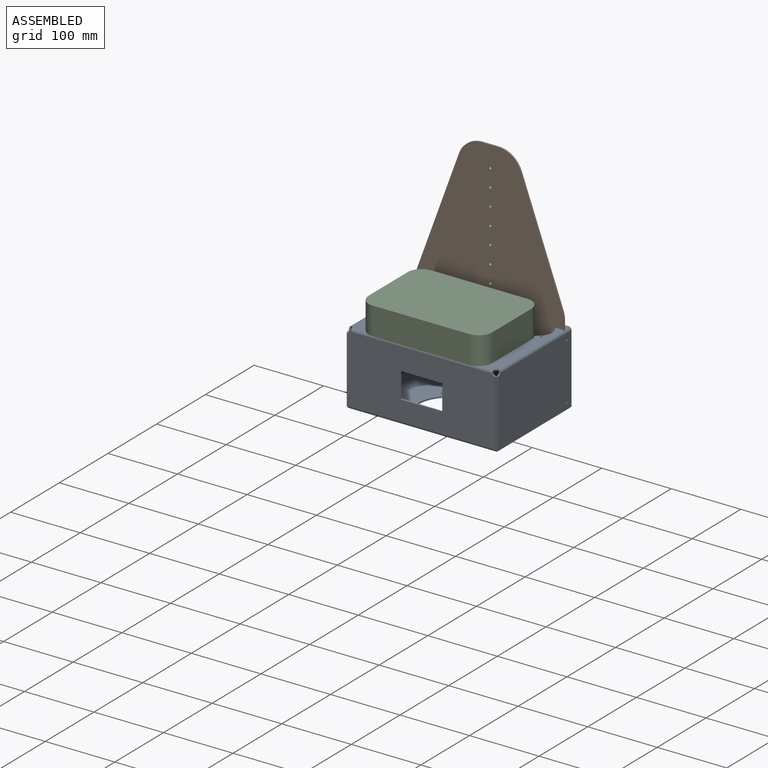
[diagram: assembled view]
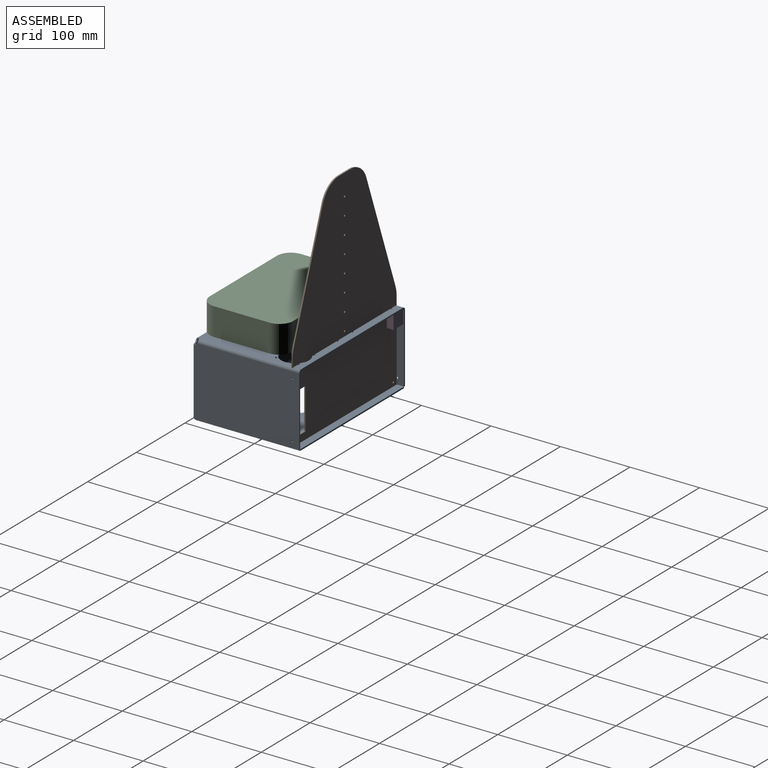
[diagram: assembled view, second angle]
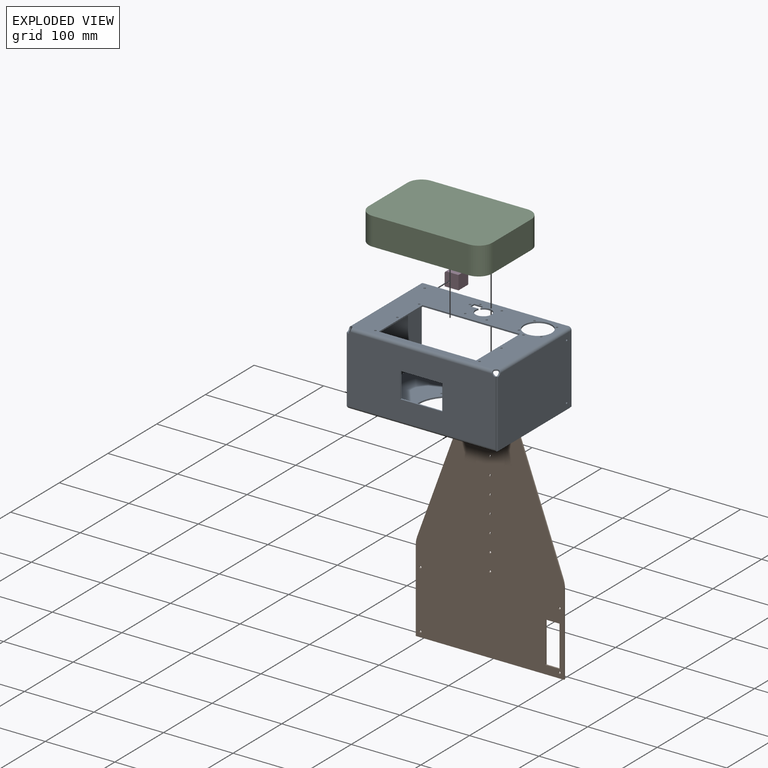
[diagram: exploded view]
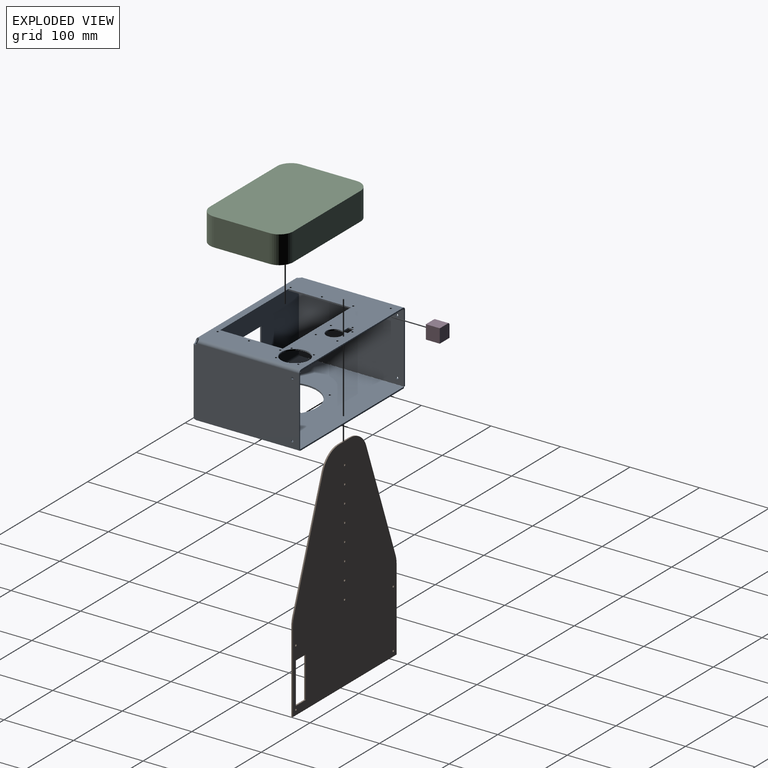
[diagram: exploded view, second angle]
ASSEMBLY  parts=4 mates=2
PART A: 83 faces, bbox 217.3x153.3x105.3 mm
  f0: plane 149.03x2mm, normal (-1,0,0), area 298.1mm2, adj f1,f8,f9,f64
  f1: plane 213.31x2mm, normal (0,1,0), area 426.6mm2, adj f0,f7,f8,f9
  f2: cylinder r=1.5mm len=3mm, axis (0,0,1), area 18.8mm2, adj f8,f9
  f3: cylinder r=1.5mm len=3mm, axis (0,0,1), area 18.8mm2, adj f8,f9
  f4: cylinder r=1.5mm len=3mm, axis (0,0,1), area 18.8mm2, adj f8,f9
  f5: cylinder r=1.5mm len=3mm, axis (0,0,1), area 18.8mm2, adj f8,f9
  f6: cylinder r=45mm len=90mm, axis (0,0,1), area 565.5mm2, adj f8,f9
  f7: plane 149.03x2mm, normal (1,0,0), area 298.1mm2, adj f1,f8,f9,f63
  f8: plane 213.31x149.03mm, normal (0,0,-1), area 25398.6mm2, adj f0,f1,f2,f3,f4,f5,f6,f7
  f9: plane 213.31x149.03mm, normal (0,0,1), area 25398.6mm2, adj f0,f1,f2,f3,f4,f5,f6,f7
  f10: plane 208.75x149.03mm, normal (0,0,1), area 16615.5mm2, adj f11,f12,f13,f14,f15,f16,f17,f18
  f11: plane 90x2mm, normal (1,0,0), area 180mm2, adj f10,f12,f37,f38
  f12: plane 140x2mm, normal (0,-1,0), area 280mm2, adj f10,f11,f13,f38
  f13: plane 90x2mm, normal (-1,0,0), area 180mm2, adj f10,f12,f37,f38
  f14: plane 11.77x2mm, normal (0,1,0), area 23.5mm2, adj f10,f15,f36,f38
  f15: plane 8x2mm, normal (1,0,0), area 16mm2, adj f10,f14,f16,f38
  f16: plane 13x2mm, normal (0,-1,0), area 26mm2, adj f10,f15,f17,f38
  f17: plane 5.88x2mm, normal (-1,0,0), area 11.8mm2, adj f10,f16,f36,f38
  f18: plane 208.75x2mm, normal (0,1,0), area 417.5mm2, adj f10,f38,f49,f79
  f19: cylinder r=1.5mm len=3mm, axis (0,0,1), area 18.8mm2, adj f10,f38
  f20: cylinder r=1.5mm len=3mm, axis (0,0,1), area 18.8mm2, adj f10,f38
  f21: cylinder r=1.5mm len=3mm, axis (0,0,1), area 18.8mm2, adj f10,f38
  f22: cylinder r=1.5mm len=3mm, axis (0,0,1), area 18.8mm2, adj f10,f38
  f23: cylinder r=1.5mm len=3mm, axis (0,0,1), area 18.8mm2, adj f10,f38
  f24: cylinder r=1.5mm len=3mm, axis (0,0,1), area 18.8mm2, adj f10,f38
  f25: cylinder r=1.5mm len=3mm, axis (0,0,1), area 18.8mm2, adj f10,f38
  f26: cylinder r=1.5mm len=3mm, axis (0,0,1), area 18.8mm2, adj f10,f38
  f27: cylinder r=1.5mm len=3mm, axis (0,0,1), area 18.8mm2, adj f10,f38
  f28: cylinder r=1.5mm len=3mm, axis (0,0,1), area 18.8mm2, adj f10,f38
  f29: cylinder r=1.5mm len=3mm, axis (0,0,1), area 18.8mm2, adj f10,f38
  f30: cylinder r=1.5mm len=3mm, axis (0,0,1), area 18.8mm2, adj f10,f38
  f31: cylinder r=1.5mm len=3mm, axis (0,0,1), area 18.8mm2, adj f10,f38
  f32: cylinder r=1.5mm len=3mm, axis (0,0,1), area 18.8mm2, adj f10,f38
  f33: cylinder r=1.5mm len=3mm, axis (0,0,1), area 18.8mm2, adj f10,f38
  f34: cylinder r=20mm len=40mm, axis (0,0,1), area 251.3mm2, adj f10,f38
  f35: cylinder r=1.5mm len=3mm, axis (0,0,1), area 18.8mm2, adj f10,f38
  f36: cylinder r=11.5mm len=23mm, axis (0,0,1), area 139.6mm2, adj f10,f14,f17,f38
  f37: plane 140x2mm, normal (0,1,0), area 280mm2, adj f10,f11,f13,f38
  f38: plane 208.75x149.03mm, normal (0,0,-1), area 16615.5mm2, adj f11,f12,f13,f14,f15,f16,f17,f18
  f39: cylinder r=5.33mm len=2.19mm, axis (0,0,-1), area 6.3mm2, adj f10,f38,f67,f80
  f40: cylinder r=5.33mm len=2.19mm, axis (0,0,-1), area 6.3mm2, adj f10,f38,f50,f68
  f41: plane 96.21x2mm, normal (0,-1,0), area 192.4mm2, adj f43,f46,f47,f48
  f42: plane 99.03x2mm, normal (0,1,0), area 198.1mm2, adj f43,f46,f47,f49
  f43: plane 151.31x2mm, normal (0,0,-1), area 302.6mm2, adj f41,f42,f46,f47
  f44: cylinder r=1.5mm len=3mm, axis (1,0,0), area 18.8mm2, adj f46,f47
  f45: cylinder r=1.5mm len=3mm, axis (1,0,0), area 18.8mm2, adj f46,f47
  f46: plane 151.31x99.03mm, normal (-1,0,0), area 14960.6mm2, adj f41,f42,f43,f44,f45,f48,f51
  f47: plane 151.31x99.03mm, normal (1,0,0), area 14960.6mm2, adj f41,f42,f43,f44,f45,f48,f52
  f48: cylinder r=5.33mm len=4.47mm, axis (1,0,0), area 11mm2, adj f41,f46,f47,f50
  f49: plane 4.3x4.3mm, normal (0,1,0), area 10.4mm2, adj f18,f42,f51,f52
  f50: bspline ~4.3x4.3mm, area 10.8mm2, adj f40,f48,f51,f52
  f51: cylinder r=4.3mm len=146.84mm, axis (0,-1,0), area 988.9mm2, adj f10,f46,f49,f50
  f52: cylinder r=2.3mm len=146.84mm, axis (0,-1,0), area 529mm2, adj f38,f47,f49,f50
  f53: plane 93.93x2mm, normal (-1,0,0), area 187.9mm2, adj f59,f60,f61,f64
  f54: plane 93.93x2mm, normal (1,0,0), area 187.9mm2, adj f59,f60,f62,f63
  f55: plane 36.72x2mm, normal (1,0,0), area 73.4mm2, adj f56,f58,f59,f60
  f56: plane 60.26x2mm, normal (0,0,-1), area 120.5mm2, adj f55,f57,f59,f60
  f57: plane 36.72x2mm, normal (-1,0,0), area 73.4mm2, adj f56,f58,f59,f60
  f58: plane 60.26x2mm, normal (0,0,1), area 120.5mm2, adj f55,f57,f59,f60
  f59: plane 213.31x96.75mm, normal (0,-1,0), area 18406.6mm2, adj f53,f54,f55,f56,f57,f58,f61,f62
  f60: plane 213.31x96.75mm, normal (0,1,0), area 18406.6mm2, adj f53,f54,f55,f56,f57,f58,f61,f62
  f61: cylinder r=5.33mm len=4.47mm, axis (0,1,0), area 11mm2, adj f53,f59,f60,f68
  f62: cylinder r=5.33mm len=4.47mm, axis (0,1,0), area 11mm2, adj f54,f59,f60,f67
  f63: plane 4.3x4.3mm, normal (1,0,0), area 10.4mm2, adj f7,f54,f65,f66
  f64: plane 4.3x4.3mm, normal (-1,0,0), area 10.4mm2, adj f0,f53,f65,f66
  f65: cylinder r=4.3mm len=213.31mm, axis (1,0,0), area 1440.8mm2, adj f8,f59,f63,f64
  f66: cylinder r=2.3mm len=213.31mm, axis (1,0,0), area 770.6mm2, adj f9,f60,f63,f64
  f67: bspline ~4.3x4.3mm, area 10.8mm2, adj f39,f62,f69,f70
  f68: bspline ~4.3x4.3mm, area 10.8mm2, adj f40,f61,f69,f70
  f69: cylinder r=4.3mm len=204.37mm, axis (1,0,0), area 1374.7mm2, adj f10,f59,f67,f68
  f70: cylinder r=2.3mm len=204.37mm, axis (1,0,0), area 735.3mm2, adj f38,f60,f67,f68
  f71: plane 96.21x2mm, normal (0,-1,0), area 192.4mm2, adj f72,f76,f77,f78
  f72: plane 151.31x2mm, normal (0,0,-1), area 302.6mm2, adj f71,f75,f76,f77
  f73: cylinder r=1.5mm len=3mm, axis (-1,0,0), area 18.8mm2, adj f76,f77
  f74: cylinder r=1.5mm len=3mm, axis (-1,0,0), area 18.8mm2, adj f76,f77
  f75: plane 99.03x2mm, normal (0,1,0), area 198.1mm2, adj f72,f76,f77,f79
  f76: plane 151.31x99.03mm, normal (1,0,0), area 14960.6mm2, adj f71,f72,f73,f74,f75,f78,f81
  f77: plane 151.31x99.03mm, normal (-1,0,0), area 14960.6mm2, adj f71,f72,f73,f74,f75,f78,f82
  f78: cylinder r=5.33mm len=4.47mm, axis (-1,0,0), area 11mm2, adj f71,f76,f77,f80
  f79: plane 4.3x4.3mm, normal (0,1,0), area 10.4mm2, adj f18,f75,f81,f82
  f80: bspline ~4.3x4.3mm, area 10.8mm2, adj f39,f78,f81,f82
  f81: cylinder r=4.3mm len=146.84mm, axis (0,1,0), area 988.9mm2, adj f10,f76,f79,f80
  f82: cylinder r=2.3mm len=146.84mm, axis (0,1,0), area 529mm2, adj f38,f77,f79,f80
PART B: 28 faces, bbox 213.3x2x318.1 mm
  f0: plane 118.07x2mm, normal (1,0,0), area 236.1mm2, adj f1,f7,f8,f20
  f1: plane 213.31x2mm, normal (0,0,-1), area 426.6mm2, adj f0,f6,f7,f8
  f2: plane 20x2mm, normal (0,0,-1), area 40mm2, adj f3,f5,f7,f8
  f3: plane 59x2mm, normal (1,0,0), area 118mm2, adj f2,f4,f7,f8
  f4: plane 20x2mm, normal (0,0,1), area 40mm2, adj f3,f5,f7,f8
  f5: plane 59x2mm, normal (-1,0,0), area 118mm2, adj f2,f4,f7,f8
  f6: plane 118.07x2mm, normal (-1,0,0), area 236.1mm2, adj f1,f7,f8,f21
  f7: plane 318.08x213.31mm, normal (0,1,0), area 52668mm2, adj f0,f1,f2,f3,f4,f5,f6,f9
  f8: plane 318.08x213.31mm, normal (0,-1,0), area 52668mm2, adj f0,f1,f2,f3,f4,f5,f6,f9
  f9: plane 165.01x60.14mm, normal (0.94,0,0.34), area 351.3mm2, adj f7,f8,f20,f23
  f10: plane 165.01x60.14mm, normal (-0.94,0,0.34), area 351.3mm2, adj f7,f8,f21,f22
  f11: plane 23.02x2mm, normal (0,0,1), area 46mm2, adj f7,f8,f22,f23
  f12: cylinder r=1.5mm len=3mm, axis (0,1,0), area 18.8mm2, adj f7,f8
  f13: cylinder r=1.5mm len=3mm, axis (0,1,0), area 18.8mm2, adj f7,f8
  f14: cylinder r=1.5mm len=3mm, axis (0,1,0), area 18.8mm2, adj f7,f8
  f15: cylinder r=1.5mm len=3mm, axis (0,1,0), area 18.8mm2, adj f7,f8
  f16: cylinder r=1.5mm len=3mm, axis (0,1,0), area 18.8mm2, adj f7,f8
  f17: cylinder r=1.5mm len=3mm, axis (0,1,0), area 18.8mm2, adj f7,f8
  f18: cylinder r=1.5mm len=3mm, axis (0,1,0), area 18.8mm2, adj f7,f8
  f19: cylinder r=1.5mm len=3mm, axis (0,1,0), area 18.8mm2, adj f7,f8
  f20: cylinder r=35mm len=11.99mm, axis (0,1,0), area 24.5mm2, adj f0,f7,f8,f9
  f21: cylinder r=35mm len=11.99mm, axis (0,1,0), area 24.5mm2, adj f6,f7,f8,f10
  f22: cylinder r=35mm len=32.88mm, axis (0,1,0), area 85.5mm2, adj f7,f8,f10,f11
  f23: cylinder r=35mm len=32.88mm, axis (0,-1,0), area 85.5mm2, adj f7,f8,f9,f11
  f24: cylinder r=1.5mm len=3mm, axis (0,-1,0), area 18.8mm2, adj f7,f8
  f25: cylinder r=1.5mm len=3mm, axis (0,-1,0), area 18.8mm2, adj f7,f8
  f26: cylinder r=1.5mm len=3mm, axis (0,-1,0), area 18.8mm2, adj f7,f8
  f27: cylinder r=1.5mm len=3mm, axis (0,-1,0), area 18.8mm2, adj f7,f8
PART C: 10 faces, bbox 178x120x40 mm
  f0: plane 138x40mm, normal (0,1,0), area 5520mm2, adj f1,f7,f8,f9
  f1: cylinder r=20mm len=40mm, axis (0,0,-1), area 1256.6mm2, adj f0,f2,f8,f9
  f2: plane 80x40mm, normal (-1,0,0), area 3200mm2, adj f1,f3,f8,f9
  f3: cylinder r=20mm len=40mm, axis (0,0,-1), area 1256.6mm2, adj f2,f4,f8,f9
  f4: plane 138x40mm, normal (0,-1,0), area 5520mm2, adj f3,f5,f8,f9
  f5: cylinder r=20mm len=40mm, axis (0,0,-1), area 1256.6mm2, adj f4,f6,f8,f9
  f6: plane 80x40mm, normal (1,0,0), area 3200mm2, adj f5,f7,f8,f9
  f7: cylinder r=20mm len=40mm, axis (0,0,-1), area 1256.6mm2, adj f0,f6,f8,f9
  f8: plane 178x120mm, normal (0,0,1), area 21016.6mm2, adj f0,f1,f2,f3,f4,f5,f6,f7
  f9: plane 178x120mm, normal (0,0,-1), area 21016.6mm2, adj f0,f1,f2,f3,f4,f5,f6,f7
PART D: 13 faces, bbox 20x20x20 mm
  f0: plane 20x17mm, normal (1,0,0), area 332.9mm2, adj f1,f3,f5,f6,f9
  f1: plane 20x20mm, normal (0,1,0), area 391mm2, adj f0,f2,f4,f5,f6,f12
  f2: plane 20x20mm, normal (-1,0,0), area 400mm2, adj f1,f3,f4,f5
  f3: plane 20x20mm, normal (0,-1,0), area 398.1mm2, adj f0,f2,f4,f5,f6
  f4: plane 20x17mm, normal (0,0,1), area 340mm2, adj f1,f2,f3,f6
  f5: plane 20x20mm, normal (0,0,-1), area 392.9mm2, adj f0,f1,f2,f3,f8
  f6: cylinder r=3mm len=20mm, axis (0,-1,0), area 94.2mm2, adj f0,f1,f3,f4
  f7: cone r=0mm half-angle=59deg, axis (0,0,-1), area 8.2mm2, adj f8
  f8: cylinder r=1.5mm len=8mm, axis (0,0,-1), area 75.4mm2, adj f5,f7
  f9: cylinder r=1.5mm len=8mm, axis (1,0,0), area 73.1mm2, adj f0,f10,f11,f12
  f10: cone r=0mm half-angle=59deg, axis (1,0,0), area 8.2mm2, adj f9
  f11: cone r=0mm half-angle=59deg, axis (0,1,0), area 6.4mm2, adj f9,f12
  f12: cylinder r=1.5mm len=8mm, axis (0,1,0), area 74.5mm2, adj f1,f9,f11
PLACE A t=(-96.87,242.15,-91.89)mm
PLACE B t=(-96.77,229.48,-93.66)mm
PLACE C rot(axis=(0,1,0),180deg) t=(-95.97,-102.85,50.78)mm
PLACE D rot(axis=(0,0,1),180deg) t=(-192.87,-17.85,-11.22)mm
MATE fastened B.f24 <-> D.f11  axis (0,-1,0) through (-196.87,-19.85,-3.22)mm
MATE fastened C.f8 <-> A.f10  axis (0,0,-1) through (-6.97,-102.85,10.78)mm
